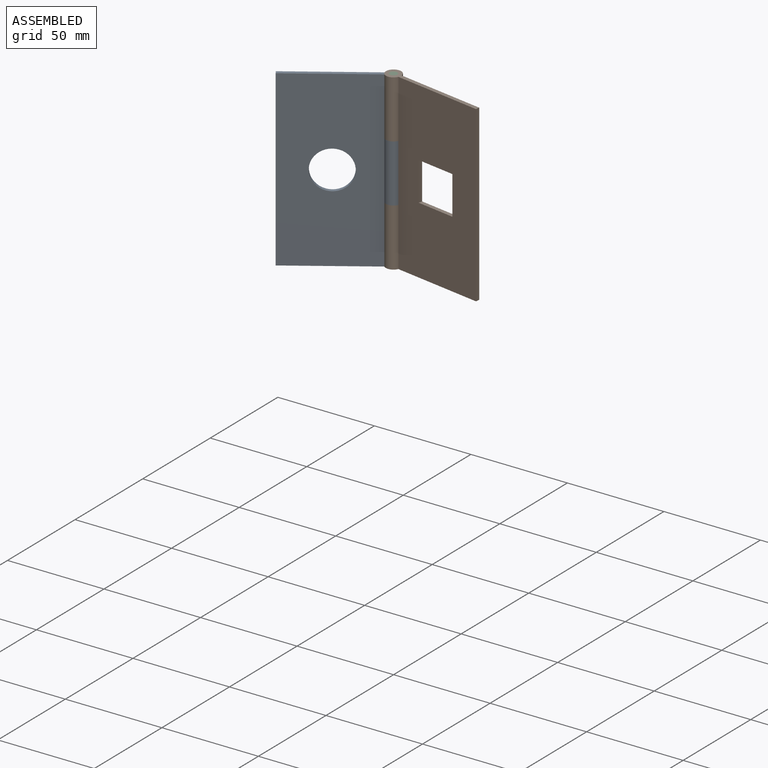
[diagram: assembled view]
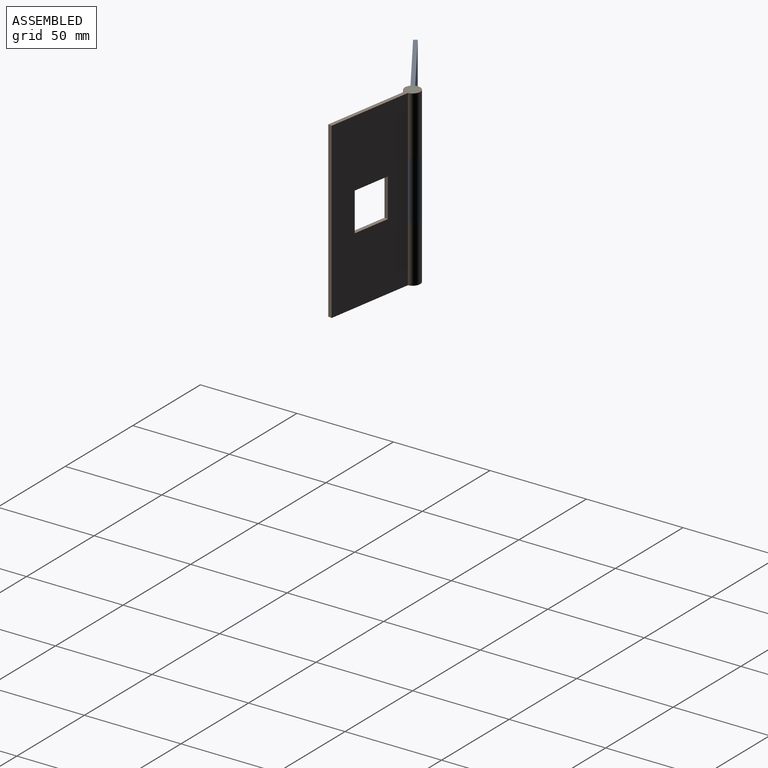
[diagram: assembled view, second angle]
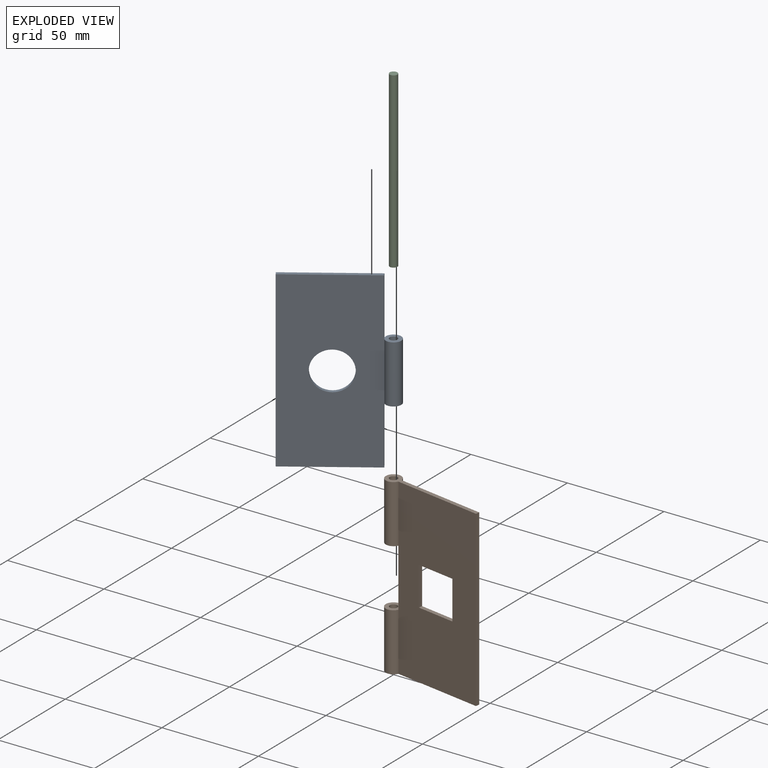
[diagram: exploded view]
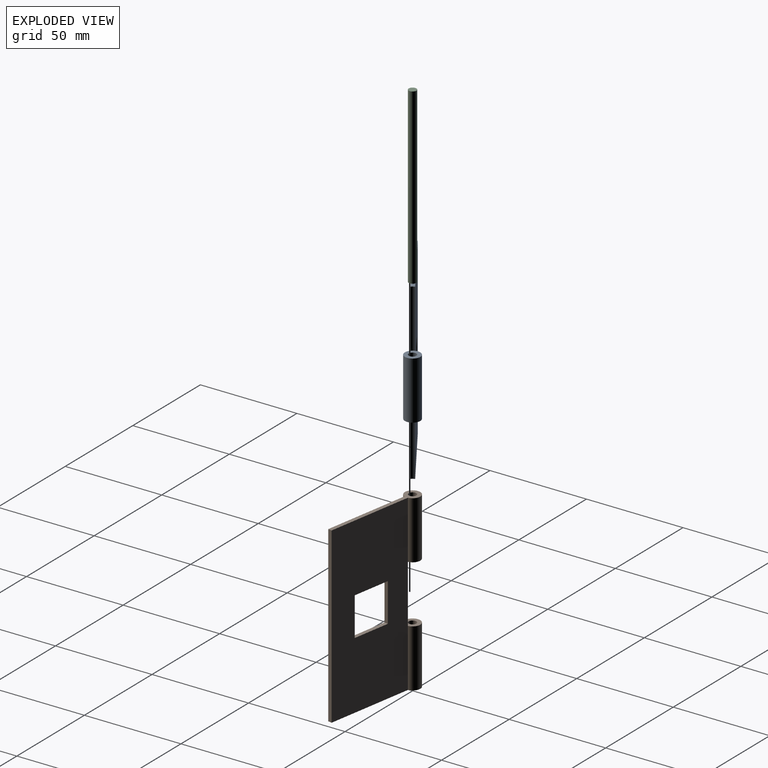
[diagram: exploded view, second angle]
ASSEMBLY  parts=3 mates=2
PART A: 12 faces, bbox 54x8x90 mm
  f0: cylinder r=4mm len=30mm, axis (0,0,-1), area 60.6mm2, adj f2,f4,f6,f10
  f1: cylinder r=4mm len=30mm, axis (0,0,-1), area 60.6mm2, adj f2,f4,f5,f9
  f2: plane 90x46.13mm, normal (0,1,0), area 3837.3mm2, adj f0,f1,f3,f5,f6,f8,f11
  f3: plane 90x2mm, normal (-1,0,0), area 180mm2, adj f2,f4,f5,f6
  f4: plane 90x46.13mm, normal (0,-1,0), area 3837.3mm2, adj f0,f1,f3,f5,f6,f8,f11
  f5: plane 46.13x2mm, normal (0,0,1), area 92.1mm2, adj f1,f2,f3,f4
  f6: plane 46.13x2mm, normal (0,0,-1), area 92.1mm2, adj f0,f2,f3,f4
  f7: cylinder r=2mm len=30mm, axis (0,0,-1), area 377mm2, adj f9,f10
  f8: cylinder r=4mm len=30mm, axis (0,0,-1), area 693.3mm2, adj f2,f4,f9,f10
  f9: plane 8x8mm, normal (0,0,1), area 37.7mm2, adj f1,f7,f8
  f10: plane 8x8mm, normal (0,0,-1), area 37.7mm2, adj f0,f7,f8
  f11: cylinder r=10mm len=20mm, axis (0,-1,0), area 125.7mm2, adj f2,f4
PART B: 16 faces, bbox 54x8x90 mm
  f0: plane 90x46.13mm, normal (0,1,0), area 3751.4mm2, adj f2,f3,f4,f5,f7,f9,f12,f13
  f1: plane 90x46.13mm, normal (0,-1,0), area 3751.4mm2, adj f2,f3,f4,f5,f7,f9,f12,f13
  f2: cylinder r=4mm len=30mm, axis (0,0,-1), area 60.6mm2, adj f0,f1,f8,f11
  f3: plane 90x2mm, normal (1,0,0), area 180mm2, adj f0,f1,f4,f5
  f4: plane 54x8mm, normal (0,0,1), area 129.8mm2, adj f0,f1,f3,f6,f7
  f5: plane 54x8mm, normal (0,0,-1), area 129.8mm2, adj f0,f1,f3,f9,f10
  f6: cylinder r=2mm len=30mm, axis (0,0,-1), area 377mm2, adj f4,f8
  f7: cylinder r=4mm len=30mm, axis (0,0,-1), area 693.3mm2, adj f0,f1,f4,f8
  f8: plane 8x8mm, normal (0,0,-1), area 37.7mm2, adj f2,f6,f7
  f9: cylinder r=4mm len=30mm, axis (0,0,1), area 693.3mm2, adj f0,f1,f5,f11
  f10: cylinder r=2mm len=30mm, axis (0,0,1), area 377mm2, adj f5,f11
  f11: plane 8x8mm, normal (0,0,1), area 37.7mm2, adj f2,f9,f10
  f12: plane 20x2mm, normal (0,0,-1), area 40mm2, adj f0,f1,f13,f15
  f13: plane 20x2mm, normal (1,0,0), area 40mm2, adj f0,f1,f12,f14
  f14: plane 20x2mm, normal (0,0,1), area 40mm2, adj f0,f1,f13,f15
  f15: plane 20x2mm, normal (-1,0,0), area 40mm2, adj f0,f1,f12,f14
PART C: 3 faces, bbox 4x4x90 mm
  f0: cylinder r=2mm len=90mm, axis (0,0,-1), area 1131mm2, adj f1,f2
  f1: plane 4x4mm, normal (0,0,1), area 12.6mm2, adj f0
  f2: plane 4x4mm, normal (0,0,-1), area 12.6mm2, adj f0
PLACE A rot(axis=(0,0,1),33.6deg) t=(0,0,0)mm
PLACE B rot(axis=(0,0,-1),9.5deg) t=(0,0,0)mm
PLACE C at identity fixed
MATE revolute C.f0 <-> A.f0  axis (0,0,-1) through (0,0,0)mm
MATE revolute B.f2 <-> C.f0  axis (0,0,1) through (0,0,45)mm
